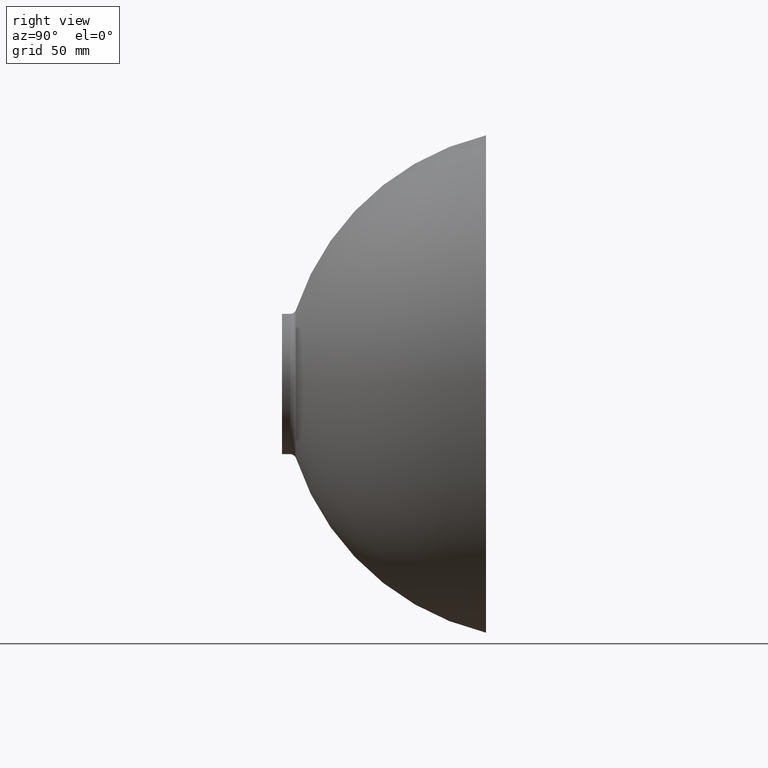
[diagram: clean part render]
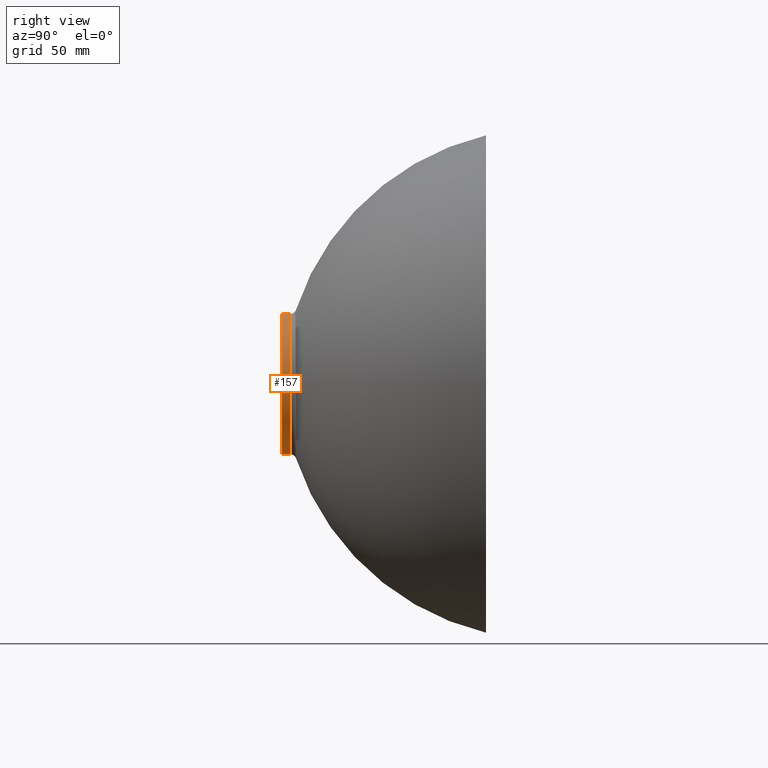
[diagram: same view with one face highlighted and labeled with its STEP entity id]
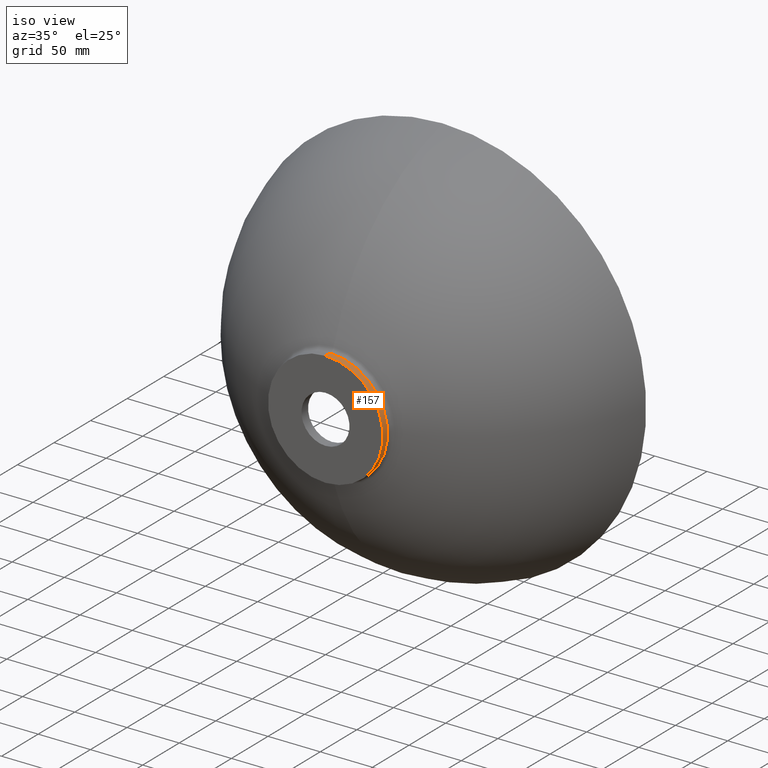
[diagram: same view with one face highlighted and labeled with its STEP entity id]
A machine part, right view. The second image highlights one B-rep face of the part: STEP entity #157.
A second angle (iso view) of the same face is appended — the face is thin or edge-on in the first view.
In plain terms, the highlighted cylindrical surface (partial cylindrical patch) has radius 55 mm, axis along (-0, -1, -0).
Its self-contained STEP definition (entity closure, byte-faithful):
#10 = CIRCLE ( 'NONE', #218, 55.00000000000001400 ) ;
#15 = VECTOR ( 'NONE', #412, 1000.000000000000000 ) ;
#31 = CARTESIAN_POINT ( 'NONE',  ( 0.0000000000000000000, 6.351875518007669400, 0.0000000000000000000 ) ) ;
#34 = DIRECTION ( 'NONE',  ( 0.0000000000000000000, 0.0000000000000000000, -1.000000000000000000 ) ) ;
#35 = CARTESIAN_POINT ( 'NONE',  ( 6.945763980383447500E-015, 6.351875518007669400, 54.99999999999999300 ) ) ;
#37 = DIRECTION ( 'NONE',  ( -0.0000000000000000000, -1.000000000000000000, -0.0000000000000000000 ) ) ;
#62 = VERTEX_POINT ( 'NONE', #66 ) ;
#66 = CARTESIAN_POINT ( 'NONE',  ( 6.735557395310445800E-015, 0.0000000000000000000, 55.00000000000002100 ) ) ;
#73 = CARTESIAN_POINT ( 'NONE',  ( 0.0000000000000000000, 0.0000000000000000000, 0.0000000000000000000 ) ) ;
#80 = FACE_OUTER_BOUND ( 'NONE', #92, .T. ) ;
#90 = LINE ( 'NONE', #303, #15 ) ;
#92 = EDGE_LOOP ( 'NONE', ( #323, #168, #179, #331 ) ) ;
#102 = EDGE_CURVE ( 'NONE', #238, #344, #269, .T. ) ;
#124 = LINE ( 'NONE', #416, #146 ) ;
#127 = DIRECTION ( 'NONE',  ( -0.0000000000000000000, -1.000000000000000000, -0.0000000000000000000 ) ) ;
#133 = CARTESIAN_POINT ( 'NONE',  ( 0.0000000000000000000, 0.0000000000000000000, -55.00000000000001400 ) ) ;
#136 = CYLINDRICAL_SURFACE ( 'NONE', #353, 55.00000000000000700 ) ;
#146 = VECTOR ( 'NONE', #221, 1000.000000000000000 ) ;
#157 = ADVANCED_FACE ( 'NONE', ( #80 ), #136, .T. ) ;
#158 = EDGE_CURVE ( 'NONE', #226, #62, #10, .T. ) ;
#162 = EDGE_CURVE ( 'NONE', #238, #226, #124, .T. ) ;
#168 = ORIENTED_EDGE ( 'NONE', *, *, #387, .T. ) ;
#179 = ORIENTED_EDGE ( 'NONE', *, *, #158, .F. ) ;
#192 = DIRECTION ( 'NONE',  ( 0.0000000000000000000, 0.0000000000000000000, -1.000000000000000000 ) ) ;
#218 = AXIS2_PLACEMENT_3D ( 'NONE', #250, #127, #192 ) ;
#221 = DIRECTION ( 'NONE',  ( -0.0000000000000000000, -1.000000000000000000, -0.0000000000000000000 ) ) ;
#226 = VERTEX_POINT ( 'NONE', #133 ) ;
#233 = AXIS2_PLACEMENT_3D ( 'NONE', #31, #37, #34 ) ;
#238 = VERTEX_POINT ( 'NONE', #402 ) ;
#250 = CARTESIAN_POINT ( 'NONE',  ( 0.0000000000000000000, 0.0000000000000000000, 0.0000000000000000000 ) ) ;
#260 = DIRECTION ( 'NONE',  ( -0.0000000000000000000, -1.000000000000000000, -0.0000000000000000000 ) ) ;
#269 = CIRCLE ( 'NONE', #233, 54.99999999999999300 ) ;
#303 = CARTESIAN_POINT ( 'NONE',  ( 6.735557395310444200E-015, 0.0000000000000000000, 55.00000000000000700 ) ) ;
#323 = ORIENTED_EDGE ( 'NONE', *, *, #102, .T. ) ;
#331 = ORIENTED_EDGE ( 'NONE', *, *, #162, .F. ) ;
#344 = VERTEX_POINT ( 'NONE', #35 ) ;
#353 = AXIS2_PLACEMENT_3D ( 'NONE', #73, #260, #393 ) ;
#387 = EDGE_CURVE ( 'NONE', #344, #62, #90, .T. ) ;
#393 = DIRECTION ( 'NONE',  ( 0.0000000000000000000, 0.0000000000000000000, -1.000000000000000000 ) ) ;
#402 = CARTESIAN_POINT ( 'NONE',  ( 0.0000000000000000000, 6.351875518007669400, -54.99999999999999300 ) ) ;
#412 = DIRECTION ( 'NONE',  ( -0.0000000000000000000, -1.000000000000000000, -0.0000000000000000000 ) ) ;
#416 = CARTESIAN_POINT ( 'NONE',  ( 0.0000000000000000000, 0.0000000000000000000, -55.00000000000000700 ) ) ;